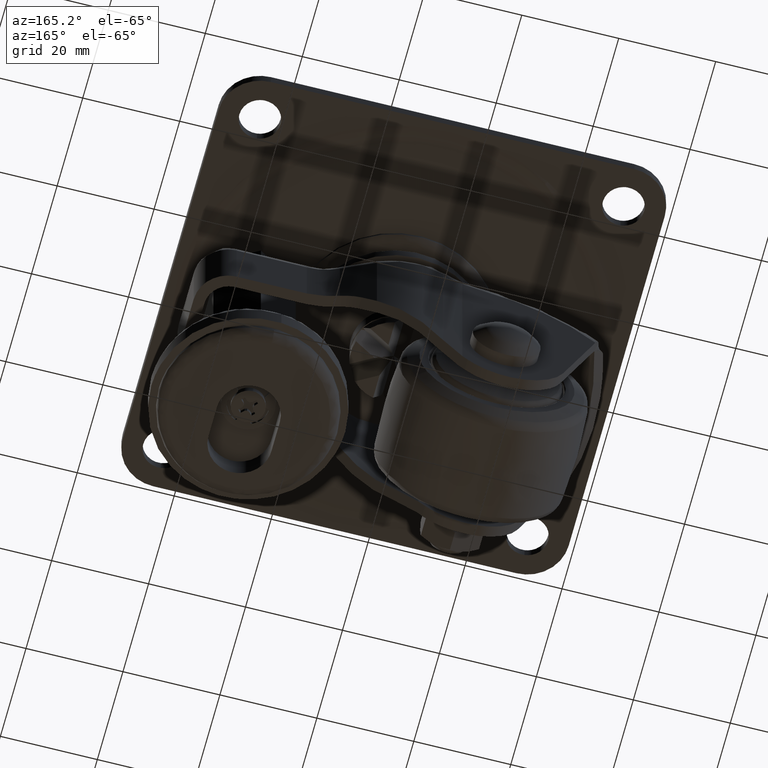
[diagram: clean part render]
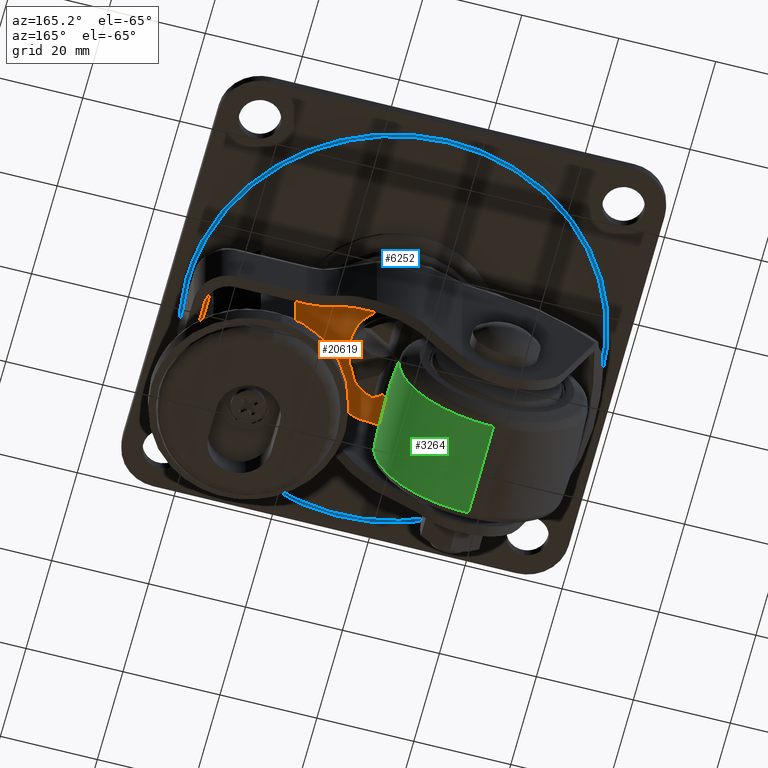
[diagram: same view with three faces highlighted in distinct colors, each labeled with its STEP entity id]
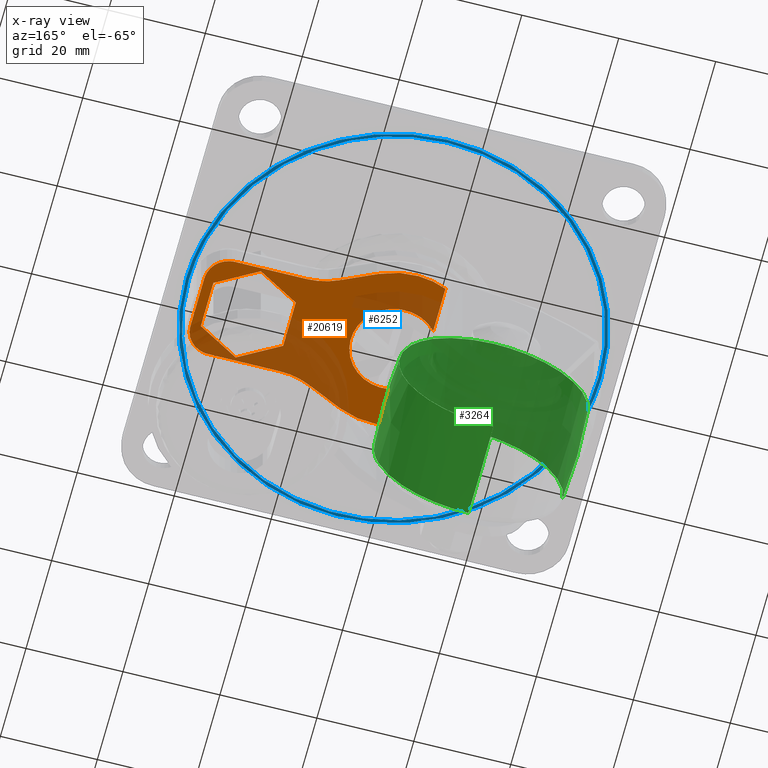
[diagram: x-ray of the same camera — body ghosted, the three highlighted faces saturated]
A machine part, auxiliary view with three faces highlighted in distinct colors.
The next image is the same camera in x-ray (body ghosted, the three faces saturated) — at least one of them is partly hidden behind the body in this view.
Their STEP definitions:

[orange] entity #20619 — the highlighted face is a freeform B-spline surface patch.
#12724=CARTESIAN_POINT('',(2.961794371949499,8.339680695196943,-12.510254204353799));
#12725=VERTEX_POINT('',#12724);
#12731=CARTESIAN_POINT('',(-6.582213136127050,-5.915823715307660,-12.510254204353799));
#12732=VERTEX_POINT('',#12731);
#12733=CARTESIAN_POINT('',(2.961794371949500,8.339680695196943,-12.510254204353805));
#12734=CARTESIAN_POINT('',(3.065269002379969,8.302932216565001,-12.510254204353803));
#12735=CARTESIAN_POINT('',(3.167800005151601,8.263627721973052,-12.510254204353799));
#12736=CARTESIAN_POINT('',(8.850000000000000,6.085398767504200,-12.510254204353799));
#12737=CARTESIAN_POINT('',(8.850000000000000,0.0,-12.510254204353799));
#12738=CARTESIAN_POINT('',(8.850000000000000,-6.085398767504312,-12.510254204353799));
#12739=CARTESIAN_POINT('',(3.167800005151458,-8.263627721973107,-12.510254204353799));
#12740=CARTESIAN_POINT('',(-2.514399989697033,-10.441856676441880,-12.510254204353799));
#12741=CARTESIAN_POINT('',(-6.582213136127051,-5.915823715307657,-12.510254204353799));
#12749=(BOUNDED_CURVE()B_SPLINE_CURVE(2,(#12733,#12734,#12735,#12736,#12737,#12738,#12739,#12740,#12741),.UNSPECIFIED.,.F.,.U.)B_SPLINE_CURVE_WITH_KNOTS((3,2,2,2,3),(0.244546413399805,0.250000000000000,0.500000000000000,0.750000000000000,1.0),.UNSPECIFIED.)CURVE()GEOMETRIC_REPRESENTATION_ITEM()RATIONAL_B_SPLINE_CURVE((0.992488744781486,0.996160618799266,1.0,0.823997422146135,1.0,0.823997422146135,1.0,0.823997422146135,1.0))REPRESENTATION_ITEM(''));
#12750=EDGE_CURVE('',#12725,#12732,#12749,.T.);
#12774=CARTESIAN_POINT('',(-6.582213136126950,5.915823715307770,-12.510254204353799));
#12775=VERTEX_POINT('',#12774);
#12781=CARTESIAN_POINT('',(-5.065942506351465,7.256633277377423,-12.510254204353799));
#12782=VERTEX_POINT('',#12781);
#12783=CARTESIAN_POINT('',(-6.582213136126949,5.915823715307771,-12.510254204353799));
#12784=CARTESIAN_POINT('',(-5.901247561098838,6.673496825411101,-12.510254204353803));
#12785=CARTESIAN_POINT('',(-5.065942506351465,7.256633277377423,-12.510254204353801));
#12793=(BOUNDED_CURVE()B_SPLINE_CURVE(2,(#12783,#12784,#12785),.UNSPECIFIED.,.F.,.U.)B_SPLINE_CURVE_WITH_KNOTS((3,3),(0.0,0.049036624749275),.UNSPECIFIED.)CURVE()GEOMETRIC_REPRESENTATION_ITEM()RATIONAL_B_SPLINE_CURVE((1.0,0.965477710539500,0.944498273509083))REPRESENTATION_ITEM(''));
#12794=EDGE_CURVE('',#12775,#12782,#12793,.T.);
#12838=CARTESIAN_POINT('',(-5.065942506351465,7.256633277377423,-12.510254204353803));
#12839=CARTESIAN_POINT('',(-1.330807225300990,9.864175902705789,-12.510254204353805));
#12840=CARTESIAN_POINT('',(2.961794371949500,8.339680695196943,-12.510254204353796));
#12848=(BOUNDED_CURVE()B_SPLINE_CURVE(2,(#12838,#12839,#12840),.UNSPECIFIED.,.F.,.U.)B_SPLINE_CURVE_WITH_KNOTS((3,3),(0.049036624749275,0.244546413399805),.UNSPECIFIED.)CURVE()GEOMETRIC_REPRESENTATION_ITEM()RATIONAL_B_SPLINE_CURVE((0.944498273509083,0.860852930445691,0.992488744781486))REPRESENTATION_ITEM(''));
#12849=EDGE_CURVE('',#12782,#12725,#12848,.T.);
#16075=CARTESIAN_POINT('',(21.499966632998799,4.907477500000000,-12.510254204353799));
#16076=VERTEX_POINT('',#16075);
#16082=CARTESIAN_POINT('',(29.999966999999899,9.814954999999999,-12.510254204353799));
#16083=VERTEX_POINT('',#16082);
#16084=CARTESIAN_POINT('',(29.999966999999899,9.814954999999999,-12.510254204353799));
#16085=CARTESIAN_POINT('',(21.499966632998799,4.907477500000000,-12.510254204353799));
#16086=QUASI_UNIFORM_CURVE('',1,(#16084,#16085),.UNSPECIFIED.,.F.,.U.);
#16087=EDGE_CURVE('',#16083,#16076,#16086,.T.);
#16104=CARTESIAN_POINT('',(38.499967367001013,4.907477500000010,-12.510254204353799));
#16105=VERTEX_POINT('',#16104);
#16132=CARTESIAN_POINT('',(38.499967367001013,4.907477500000010,-12.510254204353799));
#16133=CARTESIAN_POINT('',(29.999966999999899,9.814954999999999,-12.510254204353799));
#16134=QUASI_UNIFORM_CURVE('',1,(#16132,#16133),.UNSPECIFIED.,.F.,.U.);
#16135=EDGE_CURVE('',#16105,#16083,#16134,.T.);
#16215=CARTESIAN_POINT('',(20.764023569161498,10.500000000000000,-12.510254204353760));
#16216=VERTEX_POINT('',#16215);
#16217=CARTESIAN_POINT('',(14.329884037383501,11.918651056701600,-12.510254204353760));
#16218=VERTEX_POINT('',#16217);
#16219=CARTESIAN_POINT('',(20.764023569161498,10.500000000000000,-12.510254204353799));
#16220=CARTESIAN_POINT('',(17.390555981097478,10.500000000000002,-12.510254204353803));
#16221=CARTESIAN_POINT('',(14.329884037383501,11.918651056701600,-12.510254204353799));
#16229=(BOUNDED_CURVE()B_SPLINE_CURVE(2,(#16219,#16220,#16221),.UNSPECIFIED.,.F.,.U.)CURVE()GEOMETRIC_REPRESENTATION_ITEM()QUASI_UNIFORM_CURVE()RATIONAL_B_SPLINE_CURVE((1.0,0.976544343261563,1.0))REPRESENTATION_ITEM(''));
#16230=EDGE_CURVE('',#16216,#16218,#16229,.T.);
#16291=CARTESIAN_POINT('',(40.499966999999963,5.500000000000000,-12.510254204353760));
#16292=VERTEX_POINT('',#16291);
#16293=CARTESIAN_POINT('',(35.499966999999948,10.500000000000000,-12.510254204353760));
#16294=VERTEX_POINT('',#16293);
#16295=CARTESIAN_POINT('',(40.499966999999948,5.500000000000000,-12.510254204353799));
#16296=CARTESIAN_POINT('',(40.499966999999948,10.499999999999998,-12.510254204353798));
#16297=CARTESIAN_POINT('',(35.499966999999948,10.500000000000000,-12.510254204353799));
#16305=(BOUNDED_CURVE()B_SPLINE_CURVE(2,(#16295,#16296,#16297),.UNSPECIFIED.,.F.,.U.)CURVE()GEOMETRIC_REPRESENTATION_ITEM()QUASI_UNIFORM_CURVE()RATIONAL_B_SPLINE_CURVE((1.0,0.707106781186548,1.0))REPRESENTATION_ITEM(''));
#16306=EDGE_CURVE('',#16292,#16294,#16305,.T.);
#16415=CARTESIAN_POINT('',(7.081631999999810,15.278285999999801,-12.510254204353799));
#16416=VERTEX_POINT('',#16415);
#16417=CARTESIAN_POINT('',(14.329884037383501,11.918651056701600,-12.510254204353760));
#16418=CARTESIAN_POINT('',(7.081631999999810,15.278285999999801,-12.510254204353799));
#16419=QUASI_UNIFORM_CURVE('',1,(#16417,#16418),.UNSPECIFIED.,.F.,.U.);
#16420=EDGE_CURVE('',#16218,#16416,#16419,.T.);
#16481=CARTESIAN_POINT('',(-6.582213136127130,15.500000000000000,-12.510254204353799));
#16482=VERTEX_POINT('',#16481);
#16483=CARTESIAN_POINT('',(7.081631999999810,15.278285999999801,-12.510254204353799));
#16484=CARTESIAN_POINT('',(0.298923765655124,18.422136110090232,-12.510254204353803));
#16485=CARTESIAN_POINT('',(-6.582213136127130,15.500000000000000,-12.510254204353799));
#16493=(BOUNDED_CURVE()B_SPLINE_CURVE(2,(#16483,#16484,#16485),.UNSPECIFIED.,.F.,.U.)CURVE()GEOMETRIC_REPRESENTATION_ITEM()QUASI_UNIFORM_CURVE()RATIONAL_B_SPLINE_CURVE((1.0,0.913981117128645,1.0))REPRESENTATION_ITEM(''));
#16494=EDGE_CURVE('',#16416,#16482,#16493,.T.);
#16531=CARTESIAN_POINT('',(35.499966999999948,10.500000000000000,-12.510254204353760));
#16532=CARTESIAN_POINT('',(20.764023569161498,10.500000000000000,-12.510254204353760));
#16533=QUASI_UNIFORM_CURVE('',1,(#16531,#16532),.UNSPECIFIED.,.F.,.U.);
#16534=EDGE_CURVE('',#16294,#16216,#16533,.T.);
#18941=CARTESIAN_POINT('',(29.999966999999899,-9.814954999999999,-12.510254204353799));
#18942=VERTEX_POINT('',#18941);
#18948=CARTESIAN_POINT('',(21.499966632998799,-4.907477500000000,-12.510254204353799));
#18949=VERTEX_POINT('',#18948);
#18950=CARTESIAN_POINT('',(29.999966999999899,-9.814954999999999,-12.510254204353799));
#18951=CARTESIAN_POINT('',(21.499966632998799,-4.907477500000000,-12.510254204353799));
#18952=QUASI_UNIFORM_CURVE('',1,(#18950,#18951),.UNSPECIFIED.,.F.,.U.);
#18953=EDGE_CURVE('',#18942,#18949,#18952,.T.);
#18977=CARTESIAN_POINT('',(38.499967367001013,-4.907477500000000,-12.510254204353799));
#18978=VERTEX_POINT('',#18977);
#18984=CARTESIAN_POINT('',(38.499967367001013,-4.907477500000000,-12.510254204353799));
#18985=CARTESIAN_POINT('',(29.999966999999899,-9.814954999999999,-12.510254204353799));
#18986=QUASI_UNIFORM_CURVE('',1,(#18984,#18985),.UNSPECIFIED.,.F.,.U.);
#18987=EDGE_CURVE('',#18978,#18942,#18986,.T.);
#19088=CARTESIAN_POINT('',(20.764023569161498,-10.500000000000000,-12.510254204353760));
#19089=VERTEX_POINT('',#19088);
#19090=CARTESIAN_POINT('',(14.329884037383501,-11.918651056701600,-12.510254204353760));
#19091=VERTEX_POINT('',#19090);
#19092=CARTESIAN_POINT('',(20.764023569161498,-10.500000000000000,-12.510254204353799));
#19093=CARTESIAN_POINT('',(17.390555981097478,-10.500000000000002,-12.510254204353803));
#19094=CARTESIAN_POINT('',(14.329884037383501,-11.918651056701600,-12.510254204353799));
#19102=(BOUNDED_CURVE()B_SPLINE_CURVE(2,(#19092,#19093,#19094),.UNSPECIFIED.,.F.,.U.)CURVE()GEOMETRIC_REPRESENTATION_ITEM()QUASI_UNIFORM_CURVE()RATIONAL_B_SPLINE_CURVE((1.0,0.976544343261563,1.0))REPRESENTATION_ITEM(''));
#19103=EDGE_CURVE('',#19089,#19091,#19102,.T.);
#19164=CARTESIAN_POINT('',(40.499966999999963,-5.500000000000000,-12.510254204353760));
#19165=VERTEX_POINT('',#19164);
#19166=CARTESIAN_POINT('',(35.499966999999948,-10.500000000000000,-12.510254204353760));
#19167=VERTEX_POINT('',#19166);
#19168=CARTESIAN_POINT('',(40.499966999999948,-5.500000000000000,-12.510254204353799));
#19169=CARTESIAN_POINT('',(40.499966999999948,-10.499999999999998,-12.510254204353798));
#19170=CARTESIAN_POINT('',(35.499966999999948,-10.500000000000000,-12.510254204353799));
#19178=(BOUNDED_CURVE()B_SPLINE_CURVE(2,(#19168,#19169,#19170),.UNSPECIFIED.,.F.,.U.)CURVE()GEOMETRIC_REPRESENTATION_ITEM()QUASI_UNIFORM_CURVE()RATIONAL_B_SPLINE_CURVE((1.0,0.707106781186548,1.0))REPRESENTATION_ITEM(''));
#19179=EDGE_CURVE('',#19165,#19167,#19178,.T.);
#19288=CARTESIAN_POINT('',(7.081631999999810,-15.278285999999801,-12.510254204353799));
#19289=VERTEX_POINT('',#19288);
#19290=CARTESIAN_POINT('',(14.329884037383501,-11.918651056701600,-12.510254204353760));
#19291=CARTESIAN_POINT('',(7.081631999999810,-15.278285999999801,-12.510254204353799));
#19292=QUASI_UNIFORM_CURVE('',1,(#19290,#19291),.UNSPECIFIED.,.F.,.U.);
#19293=EDGE_CURVE('',#19091,#19289,#19292,.T.);
#19369=CARTESIAN_POINT('',(-6.582213136127130,-15.500000000000000,-12.510254204353799));
#19370=VERTEX_POINT('',#19369);
#19376=CARTESIAN_POINT('',(7.081631999999810,-15.278285999999801,-12.510254204353799));
#19377=CARTESIAN_POINT('',(0.298923765655124,-18.422136110090232,-12.510254204353803));
#19378=CARTESIAN_POINT('',(-6.582213136127130,-15.500000000000000,-12.510254204353799));
#19386=(BOUNDED_CURVE()B_SPLINE_CURVE(2,(#19376,#19377,#19378),.UNSPECIFIED.,.F.,.U.)CURVE()GEOMETRIC_REPRESENTATION_ITEM()QUASI_UNIFORM_CURVE()RATIONAL_B_SPLINE_CURVE((1.0,0.913981117128645,1.0))REPRESENTATION_ITEM(''));
#19387=EDGE_CURVE('',#19289,#19370,#19386,.T.);
#19404=CARTESIAN_POINT('',(35.499966999999948,-10.500000000000000,-12.510254204353760));
#19405=CARTESIAN_POINT('',(20.764023569161498,-10.500000000000000,-12.510254204353760));
#19406=QUASI_UNIFORM_CURVE('',1,(#19404,#19405),.UNSPECIFIED.,.F.,.U.);
#19407=EDGE_CURVE('',#19167,#19089,#19406,.T.);
#20492=CARTESIAN_POINT('',(38.499967367001013,4.907477500000010,-12.510254204353799));
#20493=CARTESIAN_POINT('',(38.499967367001013,-4.907477500000000,-12.510254204353799));
#20494=QUASI_UNIFORM_CURVE('',1,(#20492,#20493),.UNSPECIFIED.,.F.,.U.);
#20495=EDGE_CURVE('',#16105,#18978,#20494,.T.);
#20506=CARTESIAN_POINT('',(21.499966632998799,-4.907477500000000,-12.510254204353799));
#20507=CARTESIAN_POINT('',(21.499966632998799,4.907477500000000,-12.510254204353799));
#20508=QUASI_UNIFORM_CURVE('',1,(#20506,#20507),.UNSPECIFIED.,.F.,.U.);
#20509=EDGE_CURVE('',#18949,#16076,#20508,.T.);
#20576=CARTESIAN_POINT('',(-8.933967774461664,-18.520734395939790,-12.510254204353760));
#20577=CARTESIAN_POINT('',(42.851719533597020,-18.520734395939790,-12.510254204353760));
#20578=CARTESIAN_POINT('',(-8.933967774461664,18.520734395939801,-12.510254204353760));
#20579=CARTESIAN_POINT('',(42.851719533597020,18.520734395939801,-12.510254204353760));
#20580=B_SPLINE_SURFACE_WITH_KNOTS('',1,1,((#20576,#20578),(#20577,#20579)),.UNSPECIFIED.,.F.,.F.,.U.,(2,2),(2,2),(0.0,51.785687308058677),(0.0,37.041468791879602),.UNSPECIFIED.);
#20581=ORIENTED_EDGE('',*,*,#12794,.F.);
#20582=CARTESIAN_POINT('',(-6.582213136126950,5.915823715307770,-12.510254204353799));
#20583=CARTESIAN_POINT('',(-6.582213136127130,15.500000000000000,-12.510254204353799));
#20584=QUASI_UNIFORM_CURVE('',1,(#20582,#20583),.UNSPECIFIED.,.F.,.U.);
#20585=EDGE_CURVE('',#12775,#16482,#20584,.T.);
#20586=ORIENTED_EDGE('',*,*,#20585,.T.);
#20587=ORIENTED_EDGE('',*,*,#16494,.F.);
#20588=ORIENTED_EDGE('',*,*,#16420,.F.);
#20589=ORIENTED_EDGE('',*,*,#16230,.F.);
#20590=ORIENTED_EDGE('',*,*,#16534,.F.);
#20591=ORIENTED_EDGE('',*,*,#16306,.F.);
#20592=CARTESIAN_POINT('',(40.499966999999963,5.500000000000000,-12.510254204353760));
#20593=CARTESIAN_POINT('',(40.499966999999963,-5.500000000000000,-12.510254204353760));
#20594=QUASI_UNIFORM_CURVE('',1,(#20592,#20593),.UNSPECIFIED.,.F.,.U.);
#20595=EDGE_CURVE('',#16292,#19165,#20594,.T.);
#20596=ORIENTED_EDGE('',*,*,#20595,.T.);
#20597=ORIENTED_EDGE('',*,*,#19179,.T.);
#20598=ORIENTED_EDGE('',*,*,#19407,.T.);
#20599=ORIENTED_EDGE('',*,*,#19103,.T.);
#20600=ORIENTED_EDGE('',*,*,#19293,.T.);
#20601=ORIENTED_EDGE('',*,*,#19387,.T.);
#20602=CARTESIAN_POINT('',(-6.582213136127130,-15.500000000000000,-12.510254204353799));
#20603=CARTESIAN_POINT('',(-6.582213136127050,-5.915823715307660,-12.510254204353799));
#20604=QUASI_UNIFORM_CURVE('',1,(#20602,#20603),.UNSPECIFIED.,.F.,.U.);
#20605=EDGE_CURVE('',#19370,#12732,#20604,.T.);
#20606=ORIENTED_EDGE('',*,*,#20605,.T.);
#20607=ORIENTED_EDGE('',*,*,#12750,.F.);
#20608=ORIENTED_EDGE('',*,*,#12849,.F.);
#20609=EDGE_LOOP('',(#20581,#20586,#20587,#20588,#20589,#20590,#20591,#20596,#20597,#20598,#20599,#20600,#20601,#20606,#20607,#20608));
#20610=FACE_OUTER_BOUND('',#20609,.T.);
#20611=ORIENTED_EDGE('',*,*,#20495,.F.);
#20612=ORIENTED_EDGE('',*,*,#16135,.T.);
#20613=ORIENTED_EDGE('',*,*,#16087,.T.);
#20614=ORIENTED_EDGE('',*,*,#20509,.F.);
#20615=ORIENTED_EDGE('',*,*,#18953,.F.);
#20616=ORIENTED_EDGE('',*,*,#18987,.F.);
#20617=EDGE_LOOP('',(#20611,#20612,#20613,#20614,#20615,#20616));
#20618=FACE_BOUND('',#20617,.T.);
#20619=ADVANCED_FACE('',(#20610,#20618),#20580,.F.);

[blue] entity #6252 — the highlighted face is a freeform B-spline surface patch.
#5825=CARTESIAN_POINT('',(37.757146206083021,-18.940351374251581,-2.685628000000000));
#5826=VERTEX_POINT('',#5825);
#5840=CARTESIAN_POINT('',(-42.241436999999998,0.0,-2.685628000000000));
#5841=VERTEX_POINT('',#5840);
#5842=CARTESIAN_POINT('',(37.757146206083021,-18.940351374251591,-2.685627999999999));
#5843=CARTESIAN_POINT('',(26.068478139480344,-42.241436999999998,-2.685628000000000));
#5844=CARTESIAN_POINT('',(0.0,-42.241436999999998,-2.685628000000000));
#5845=CARTESIAN_POINT('',(-42.241436999999998,-42.241436999999998,-2.685628000000000));
#5846=CARTESIAN_POINT('',(-42.241436999999998,0.0,-2.685628000000000));
#5854=(BOUNDED_CURVE()B_SPLINE_CURVE(2,(#5842,#5843,#5844,#5845,#5846),.UNSPECIFIED.,.F.,.U.)B_SPLINE_CURVE_WITH_KNOTS((3,2,3),(0.576230937884423,0.750000000000000,1.0),.UNSPECIFIED.)CURVE()GEOMETRIC_REPRESENTATION_ITEM()RATIONAL_B_SPLINE_CURVE((0.875845342762591,0.796416880267096,1.0,0.707106781186547,1.0))REPRESENTATION_ITEM(''));
#5855=EDGE_CURVE('',#5826,#5841,#5854,.T.);
#5857=CARTESIAN_POINT('',(18.940351374187710,37.757146205922233,-2.685628000000000));
#5858=VERTEX_POINT('',#5857);
#5859=CARTESIAN_POINT('',(-42.241436999999998,0.0,-2.685628000000000));
#5860=CARTESIAN_POINT('',(-42.241436999999998,42.241436999999998,-2.685628000000000));
#5861=CARTESIAN_POINT('',(0.0,42.241436999999998,-2.685628000000000));
#5862=CARTESIAN_POINT('',(10.001022859073496,42.241436999999998,-2.685628000000000));
#5863=CARTESIAN_POINT('',(18.940351374187710,37.757146205922218,-2.685627999999999));
#5871=(BOUNDED_CURVE()B_SPLINE_CURVE(2,(#5859,#5860,#5861,#5862,#5863),.UNSPECIFIED.,.F.,.U.)B_SPLINE_CURVE_WITH_KNOTS((3,2,3),(0.0,0.250000000000000,0.326230937884533),.UNSPECIFIED.)CURVE()GEOMETRIC_REPRESENTATION_ITEM()RATIONAL_B_SPLINE_CURVE((1.0,0.707106781186547,1.0,0.910689900919323,0.875845342762490))REPRESENTATION_ITEM(''));
#5872=EDGE_CURVE('',#5841,#5858,#5871,.T.);
#5953=CARTESIAN_POINT('',(42.241436999999998,0.0,-2.685628000000000));
#5954=VERTEX_POINT('',#5953);
#5955=CARTESIAN_POINT('',(18.940351374187710,37.757146205922218,-2.685627999999999));
#5956=CARTESIAN_POINT('',(42.241436999999991,26.068478139459629,-2.685628000000000));
#5957=CARTESIAN_POINT('',(42.241436999999998,0.0,-2.685628000000000));
#5965=(BOUNDED_CURVE()B_SPLINE_CURVE(2,(#5955,#5956,#5957),.UNSPECIFIED.,.F.,.U.)B_SPLINE_CURVE_WITH_KNOTS((3,3),(0.326230937884534,0.500000000000000),.UNSPECIFIED.)CURVE()GEOMETRIC_REPRESENTATION_ITEM()RATIONAL_B_SPLINE_CURVE((0.875845342762490,0.796416880267225,1.0))REPRESENTATION_ITEM(''));
#5966=EDGE_CURVE('',#5858,#5954,#5965,.T.);
#5968=CARTESIAN_POINT('',(42.241436999999998,0.0,-2.685628000000000));
#5969=CARTESIAN_POINT('',(42.241437000000005,-10.001022859057574,-2.685628000000001));
#5970=CARTESIAN_POINT('',(37.757146206083021,-18.940351374251588,-2.685627999999999));
#5978=(BOUNDED_CURVE()B_SPLINE_CURVE(2,(#5968,#5969,#5970),.UNSPECIFIED.,.F.,.U.)B_SPLINE_CURVE_WITH_KNOTS((3,3),(0.500000000000000,0.576230937884423),.UNSPECIFIED.)CURVE()GEOMETRIC_REPRESENTATION_ITEM()RATIONAL_B_SPLINE_CURVE((1.0,0.910689900919452,0.875845342762591))REPRESENTATION_ITEM(''));
#5979=EDGE_CURVE('',#5954,#5826,#5978,.T.);
#6020=CARTESIAN_POINT('',(36.314905863463103,22.761459414357159,-2.685628000000000));
#6021=VERTEX_POINT('',#6020);
#6022=CARTESIAN_POINT('',(42.858562999999997,0.0,-2.685628000000000));
#6023=VERTEX_POINT('',#6022);
#6024=CARTESIAN_POINT('',(36.314905863463096,22.761459414357159,-2.685628000000000));
#6025=CARTESIAN_POINT('',(42.858563000000011,12.321342695619100,-2.685628000000000));
#6026=CARTESIAN_POINT('',(42.858562999999997,0.0,-2.685628000000000));
#6034=(BOUNDED_CURVE()B_SPLINE_CURVE(2,(#6024,#6025,#6026),.UNSPECIFIED.,.F.,.U.)B_SPLINE_CURVE_WITH_KNOTS((3,3),(0.409173271053396,0.500000000000000),.UNSPECIFIED.)CURVE()GEOMETRIC_REPRESENTATION_ITEM()RATIONAL_B_SPLINE_CURVE((0.864498809753776,0.893589868018129,1.0))REPRESENTATION_ITEM(''));
#6035=EDGE_CURVE('',#6021,#6023,#6034,.T.);
#6099=CARTESIAN_POINT('',(-20.647270193131821,37.557245055844021,-2.685628000000000));
#6100=VERTEX_POINT('',#6099);
#6114=CARTESIAN_POINT('',(-42.858562999999997,0.0,-2.685628000000000));
#6115=VERTEX_POINT('',#6114);
#6116=CARTESIAN_POINT('',(-42.858562999999997,0.0,-2.685628000000000));
#6117=CARTESIAN_POINT('',(-42.858563000000004,25.346483501387556,-2.685628000000000));
#6118=CARTESIAN_POINT('',(-20.647270193131824,37.557245055844021,-2.685628000000000));
#6126=(BOUNDED_CURVE()B_SPLINE_CURVE(2,(#6116,#6117,#6118),.UNSPECIFIED.,.F.,.U.)B_SPLINE_CURVE_WITH_KNOTS((3,3),(0.0,0.167949183895830),.UNSPECIFIED.)CURVE()GEOMETRIC_REPRESENTATION_ITEM()RATIONAL_B_SPLINE_CURVE((1.0,0.803235291726632,0.870842360845370))REPRESENTATION_ITEM(''));
#6127=EDGE_CURVE('',#6115,#6100,#6126,.T.);
#6129=CARTESIAN_POINT('',(42.858562999999997,0.0,-2.685628000000000));
#6130=CARTESIAN_POINT('',(42.858563000000011,-42.858563000000011,-2.685628000000000));
#6131=CARTESIAN_POINT('',(0.0,-42.858562999999997,-2.685628000000000));
#6132=CARTESIAN_POINT('',(-42.858563000000011,-42.858563000000011,-2.685628000000000));
#6133=CARTESIAN_POINT('',(-42.858562999999997,0.0,-2.685628000000000));
#6141=(BOUNDED_CURVE()B_SPLINE_CURVE(2,(#6129,#6130,#6131,#6132,#6133),.UNSPECIFIED.,.F.,.U.)B_SPLINE_CURVE_WITH_KNOTS((3,2,3),(0.500000000000000,0.750000000000000,1.0),.UNSPECIFIED.)CURVE()GEOMETRIC_REPRESENTATION_ITEM()RATIONAL_B_SPLINE_CURVE((1.0,0.707106781186548,1.0,0.707106781186548,1.0))REPRESENTATION_ITEM(''));
#6142=EDGE_CURVE('',#6023,#6115,#6141,.T.);
#6164=CARTESIAN_POINT('',(-20.647270193131817,37.557245055844028,-2.685627999999999));
#6165=CARTESIAN_POINT('',(-11.004208646599512,42.858563000000011,-2.685628000000000));
#6166=CARTESIAN_POINT('',(0.0,42.858562999999997,-2.685628000000000));
#6167=CARTESIAN_POINT('',(23.718441772619745,42.858563000000011,-2.685628000000000));
#6168=CARTESIAN_POINT('',(36.314905863463096,22.761459414357166,-2.685627999999999));
#6176=(BOUNDED_CURVE()B_SPLINE_CURVE(2,(#6164,#6165,#6166,#6167,#6168),.UNSPECIFIED.,.F.,.U.)B_SPLINE_CURVE_WITH_KNOTS((3,2,3),(0.167949183895830,0.250000000000000,0.409173271053397),.UNSPECIFIED.)CURVE()GEOMETRIC_REPRESENTATION_ITEM()RATIONAL_B_SPLINE_CURVE((0.870842360845369,0.903871489459916,1.0,0.813516913168418,0.864498809753776))REPRESENTATION_ITEM(''));
#6177=EDGE_CURVE('',#6100,#6021,#6176,.T.);
#6235=CARTESIAN_POINT('',(47.140133277563578,-47.140129498682768,-2.685628000000000));
#6236=CARTESIAN_POINT('',(-47.140135576676059,-47.140129498682768,-2.685628000000000));
#6237=CARTESIAN_POINT('',(47.140133277563578,47.140056143493773,-2.685628000000000));
#6238=CARTESIAN_POINT('',(-47.140135576676059,47.140056143493773,-2.685628000000000));
#6239=B_SPLINE_SURFACE_WITH_KNOTS('',1,1,((#6235,#6237),(#6236,#6238)),.UNSPECIFIED.,.F.,.F.,.U.,(2,2),(2,2),(0.0,94.280268854239637),(0.0,94.280185642176534),.UNSPECIFIED.);
#6240=ORIENTED_EDGE('',*,*,#6035,.T.);
#6241=ORIENTED_EDGE('',*,*,#6142,.T.);
#6242=ORIENTED_EDGE('',*,*,#6127,.T.);
#6243=ORIENTED_EDGE('',*,*,#6177,.T.);
#6244=EDGE_LOOP('',(#6240,#6241,#6242,#6243));
#6245=FACE_OUTER_BOUND('',#6244,.T.);
#6246=ORIENTED_EDGE('',*,*,#5872,.F.);
#6247=ORIENTED_EDGE('',*,*,#5855,.F.);
#6248=ORIENTED_EDGE('',*,*,#5979,.F.);
#6249=ORIENTED_EDGE('',*,*,#5966,.F.);
#6250=EDGE_LOOP('',(#6246,#6247,#6248,#6249));
#6251=FACE_BOUND('',#6250,.T.);
#6252=ADVANCED_FACE('',(#6245,#6251),#6239,.T.);

[green] entity #3264 — the highlighted face is a freeform B-spline surface patch.
#2520=CARTESIAN_POINT('',(-1.013542632934380,9.835953801905641,-30.392745770834139));
#2521=VERTEX_POINT('',#2520);
#2535=CARTESIAN_POINT('',(-17.999999000000098,9.835954750004738,-59.515088303104932));
#2536=VERTEX_POINT('',#2535);
#2537=CARTESIAN_POINT('',(-1.013542632934380,9.835953801905641,-30.392745770834139));
#2538=CARTESIAN_POINT('',(1.515095431105951,9.835953932050048,-34.863599724702880));
#2539=CARTESIAN_POINT('',(1.515095431105951,9.835954102479420,-39.999993935999477));
#2540=CARTESIAN_POINT('',(1.515095431105950,9.835954750004738,-59.515088303104939));
#2541=CARTESIAN_POINT('',(-17.999999000000098,9.835954750004738,-59.515088303104932));
#2549=(BOUNDED_CURVE()B_SPLINE_CURVE(2,(#2537,#2538,#2539,#2540,#2541),.UNSPECIFIED.,.F.,.U.)B_SPLINE_CURVE_WITH_KNOTS((3,2,3),(0.166092120203505,0.250000000000000,0.500000000000000),.UNSPECIFIED.)CURVE()GEOMETRIC_REPRESENTATION_ITEM()RATIONAL_B_SPLINE_CURVE((0.869379581305451,0.901695804010369,1.0,0.707106781186548,1.0))REPRESENTATION_ITEM(''));
#2550=EDGE_CURVE('',#2521,#2536,#2549,.T.);
#2611=CARTESIAN_POINT('',(-37.384569424891630,9.835953450083725,-42.253289390355718));
#2612=VERTEX_POINT('',#2611);
#2626=CARTESIAN_POINT('',(-17.999999000000098,9.835953454954101,-20.484899568894040));
#2627=VERTEX_POINT('',#2626);
#2628=CARTESIAN_POINT('',(-37.384569424891637,9.835953450083725,-42.253289390355711));
#2629=CARTESIAN_POINT('',(-37.515093431106152,9.835953454954103,-41.130422076933996));
#2630=CARTESIAN_POINT('',(-37.515093431106152,9.835953454954101,-39.999994000000093));
#2631=CARTESIAN_POINT('',(-37.515093431106159,9.835953454954101,-20.484899568894040));
#2632=CARTESIAN_POINT('',(-17.999999000000098,9.835953454954101,-20.484899568894040));
#2640=(BOUNDED_CURVE()B_SPLINE_CURVE(2,(#2628,#2629,#2630,#2631,#2632),.UNSPECIFIED.,.F.,.U.)B_SPLINE_CURVE_WITH_KNOTS((3,2,3),(0.729999999100019,0.750000000000000,1.0),.UNSPECIFIED.)CURVE()GEOMETRIC_REPRESENTATION_ITEM()RATIONAL_B_SPLINE_CURVE((0.956886116419278,0.976568541440530,1.0,0.707106781186548,1.0))REPRESENTATION_ITEM(''));
#2641=EDGE_CURVE('',#2612,#2627,#2640,.T.);
#2643=CARTESIAN_POINT('',(-17.999999000000098,9.835953454954101,-20.484899568894040));
#2644=CARTESIAN_POINT('',(-6.617250633923225,9.835953454954101,-20.484899568894043));
#2645=CARTESIAN_POINT('',(-1.013542632934380,9.835953801905641,-30.392745770834139));
#2653=(BOUNDED_CURVE()B_SPLINE_CURVE(2,(#2643,#2644,#2645),.UNSPECIFIED.,.F.,.U.)B_SPLINE_CURVE_WITH_KNOTS((3,3),(0.0,0.166092120203505),.UNSPECIFIED.)CURVE()GEOMETRIC_REPRESENTATION_ITEM()RATIONAL_B_SPLINE_CURVE((1.0,0.805410977176179,0.869379581305451))REPRESENTATION_ITEM(''));
#2654=EDGE_CURVE('',#2627,#2521,#2653,.T.);
#2677=CARTESIAN_POINT('',(-10.917887246938660,-9.835953127419440,-21.815313038026840));
#2678=VERTEX_POINT('',#2677);
#2679=CARTESIAN_POINT('',(0.559959080454197,-9.835954198488775,-46.030489941608010));
#2680=VERTEX_POINT('',#2679);
#2681=CARTESIAN_POINT('',(-10.917887246938664,-9.835953127419440,-21.815313038026844));
#2682=CARTESIAN_POINT('',(1.515095888621952,-9.835953342618824,-26.657398277608202));
#2683=CARTESIAN_POINT('',(1.515095888621951,-9.835953933864442,-39.999993862105377));
#2684=CARTESIAN_POINT('',(1.515095888621951,-9.835954070829819,-43.090881310079780));
#2685=CARTESIAN_POINT('',(0.559959080454197,-9.835954198488775,-46.030489941608010));
#2693=(BOUNDED_CURVE()B_SPLINE_CURVE(2,(#2681,#2682,#2683,#2684,#2685),.UNSPECIFIED.,.F.,.U.)B_SPLINE_CURVE_WITH_KNOTS((3,2,3),(0.061622011916098,0.250000000000000,0.302549826877912),.UNSPECIFIED.)CURVE()GEOMETRIC_REPRESENTATION_ITEM()RATIONAL_B_SPLINE_CURVE((0.891200894947009,0.779301458866015,1.0,0.938434048230555,0.902750337317576))REPRESENTATION_ITEM(''));
#2694=EDGE_CURVE('',#2678,#2680,#2693,.T.);
#2761=CARTESIAN_POINT('',(-17.999999000000098,-9.835953069099100,-20.484899111378041));
#2762=VERTEX_POINT('',#2761);
#2763=CARTESIAN_POINT('',(-17.999999000000098,-9.835953069099100,-20.484899111378041));
#2764=CARTESIAN_POINT('',(-14.333980308485788,-9.835953069099100,-20.484899111378041));
#2765=CARTESIAN_POINT('',(-10.917887246938664,-9.835953127419440,-21.815313038026844));
#2773=(BOUNDED_CURVE()B_SPLINE_CURVE(2,(#2763,#2764,#2765),.UNSPECIFIED.,.F.,.U.)B_SPLINE_CURVE_WITH_KNOTS((3,3),(0.0,0.061622011916098),.UNSPECIFIED.)CURVE()GEOMETRIC_REPRESENTATION_ITEM()RATIONAL_B_SPLINE_CURVE((1.0,0.927805322320532,0.891200894947009))REPRESENTATION_ITEM(''));
#2774=EDGE_CURVE('',#2762,#2678,#2773,.T.);
#2776=CARTESIAN_POINT('',(-37.384569673078403,-9.835953043703775,-42.253289419183417));
#2777=VERTEX_POINT('',#2776);
#2778=CARTESIAN_POINT('',(-37.384569673078403,-9.835953043703775,-42.253289419183417));
#2779=CARTESIAN_POINT('',(-37.515093888622154,-9.835953069099100,-41.130422103414112));
#2780=CARTESIAN_POINT('',(-37.515093888622147,-9.835953069099100,-39.999994000000093));
#2781=CARTESIAN_POINT('',(-37.515093888622147,-9.835953069099100,-20.484899111378049));
#2782=CARTESIAN_POINT('',(-17.999999000000098,-9.835953069099100,-20.484899111378041));
#2790=(BOUNDED_CURVE()B_SPLINE_CURVE(2,(#2778,#2779,#2780,#2781,#2782),.UNSPECIFIED.,.F.,.U.)B_SPLINE_CURVE_WITH_KNOTS((3,2,3),(0.729999999100397,0.750000000000000,1.0),.UNSPECIFIED.)CURVE()GEOMETRIC_REPRESENTATION_ITEM()RATIONAL_B_SPLINE_CURVE((0.956886116420022,0.976568541440973,1.0,0.707106781186548,1.0))REPRESENTATION_ITEM(''));
#2791=EDGE_CURVE('',#2777,#2762,#2790,.T.);
#2793=CARTESIAN_POINT('',(-17.999999000000098,-9.835954798629786,-59.515088612832727));
#2794=VERTEX_POINT('',#2793);
#2808=CARTESIAN_POINT('',(0.559959080454197,-9.835954198488775,-46.030489941608010));
#2809=CARTESIAN_POINT('',(-3.821452756518120,-9.835954798629786,-59.515088612832720));
#2810=CARTESIAN_POINT('',(-17.999999000000098,-9.835954798629786,-59.515088612832727));
#2818=(BOUNDED_CURVE()B_SPLINE_CURVE(2,(#2808,#2809,#2810),.UNSPECIFIED.,.F.,.U.)B_SPLINE_CURVE_WITH_KNOTS((3,3),(0.302549826877911,0.500000000000000),.UNSPECIFIED.)CURVE()GEOMETRIC_REPRESENTATION_ITEM()RATIONAL_B_SPLINE_CURVE((0.902750337317576,0.768672732955992,1.0))REPRESENTATION_ITEM(''));
#2819=EDGE_CURVE('',#2680,#2794,#2818,.T.);
#3194=CARTESIAN_POINT('',(-37.283822440229166,10.813066762592346,-42.241577855674670));
#3195=CARTESIAN_POINT('',(-38.452076427501829,-0.000001992680530,-42.377377651047972));
#3196=CARTESIAN_POINT('',(-37.283822014681448,-10.813070701355587,-42.241577806208284));
#3197=CARTESIAN_POINT('',(-37.413668015823696,10.813066762592339,-41.124546633344508));
#3198=CARTESIAN_POINT('',(-38.589788317154252,-0.000001992680535,-41.192674362364365));
#3199=CARTESIAN_POINT('',(-37.413667587410600,-10.813070701355592,-41.124546608528334));
#3200=CARTESIAN_POINT('',(-37.413668015823681,10.813066762592342,-39.999994000000093));
#3201=CARTESIAN_POINT('',(-38.589788317154238,-0.000001992680531,-39.999994000000079));
#3202=CARTESIAN_POINT('',(-37.413667587410593,-10.813070701355587,-39.999994000000093));
#3203=CARTESIAN_POINT('',(-37.413668015823696,10.813066762592342,-20.586324984176507));
#3204=CARTESIAN_POINT('',(-38.589788317154252,-0.000001992680535,-19.410204682845944));
#3205=CARTESIAN_POINT('',(-37.413667587410600,-10.813070701355590,-20.586325412589595));
#3206=CARTESIAN_POINT('',(-17.999999000000102,10.813066762592342,-20.586324984176510));
#3207=CARTESIAN_POINT('',(-17.999999000000102,-0.000001992680531,-19.410204682845944));
#3208=CARTESIAN_POINT('',(-17.999999000000102,-10.813070701355587,-20.586325412589602));
#3209=CARTESIAN_POINT('',(1.413670015823490,10.813066762592342,-20.586324984176493));
#3210=CARTESIAN_POINT('',(2.589790317154052,-0.000001992680535,-19.410204682845929));
#3211=CARTESIAN_POINT('',(1.413669587410399,-10.813070701355590,-20.586325412589595));
#3212=CARTESIAN_POINT('',(1.413670015823487,10.813066762592342,-39.999994000000093));
#3213=CARTESIAN_POINT('',(2.589790317154048,-0.000001992680531,-39.999994000000079));
#3214=CARTESIAN_POINT('',(1.413669587410395,-10.813070701355587,-39.999994000000093));
#3215=CARTESIAN_POINT('',(1.413670015823501,10.813066762592342,-59.413663015823680));
#3216=CARTESIAN_POINT('',(2.589790317154060,-0.000001992680535,-60.589783317154250));
#3217=CARTESIAN_POINT('',(1.413669587410404,-10.813070701355590,-59.413662587410577));
#3218=CARTESIAN_POINT('',(-17.999999000000102,10.813066762592342,-59.413663015823680));
#3219=CARTESIAN_POINT('',(-17.999999000000102,-0.000001992680531,-60.589783317154243));
#3220=CARTESIAN_POINT('',(-17.999999000000102,-10.813070701355587,-59.413662587410606));
#3228=(BOUNDED_SURFACE()B_SPLINE_SURFACE(2,2,((#3194,#3197,#3200,#3203,#3206,#3209,#3212,#3215,#3218),(#3195,#3198,#3201,#3204,#3207,#3210,#3213,#3216,#3219),(#3196,#3199,#3202,#3205,#3208,#3211,#3214,#3217,#3220)),.UNSPECIFIED.,.F.,.F.,.U.)B_SPLINE_SURFACE_WITH_KNOTS((3,3),(3,2,2,2,3),(0.0,21.689724274079019),(0.0,2.650966246153038,35.788051236000648,68.925136225848249,102.062221215695900),.UNSPECIFIED.)GEOMETRIC_REPRESENTATION_ITEM()RATIONAL_B_SPLINE_SURFACE(((0.863729671103128,0.881495934539025,0.902646247312750,0.638267282487435,0.902646247312750,0.638267282487435,0.902646247312750,0.638267282487435,0.902646247312750),(0.858665355494123,0.876327449803680,0.897353751717644,0.634524922962735,0.897353751717644,0.634524922962735,0.897353751717644,0.634524922962735,0.897353751717644),(0.863729672958733,0.881495936432799,0.902646249251963,0.638267283858665,0.902646249251963,0.638267283858665,0.902646249251963,0.638267283858665,0.902646249251963)))REPRESENTATION_ITEM('')SURFACE());
#3229=ORIENTED_EDGE('',*,*,#2641,.F.);
#3230=CARTESIAN_POINT('',(-37.384569424891637,9.835953450083725,-42.253289390355718));
#3231=CARTESIAN_POINT('',(-38.350241087081173,0.000000215537697,-42.365540649668006));
#3232=CARTESIAN_POINT('',(-37.384569673078403,-9.835953043703775,-42.253289419183417));
#3240=(BOUNDED_CURVE()B_SPLINE_CURVE(2,(#3230,#3231,#3232),.UNSPECIFIED.,.F.,.U.)B_SPLINE_CURVE_WITH_KNOTS((3,3),(0.426051057892046,0.573948938882746),.UNSPECIFIED.)CURVE()GEOMETRIC_REPRESENTATION_ITEM()RATIONAL_B_SPLINE_CURVE((0.863290578412667,0.859104434421807,0.863290578230093))REPRESENTATION_ITEM(''));
#3241=EDGE_CURVE('',#2612,#2777,#3240,.T.);
#3242=ORIENTED_EDGE('',*,*,#3241,.T.);
#3243=ORIENTED_EDGE('',*,*,#2791,.T.);
#3244=ORIENTED_EDGE('',*,*,#2774,.T.);
#3245=ORIENTED_EDGE('',*,*,#2694,.T.);
#3246=ORIENTED_EDGE('',*,*,#2819,.T.);
#3247=CARTESIAN_POINT('',(-17.999999000000095,9.835954750004737,-59.515088303104989));
#3248=CARTESIAN_POINT('',(-17.999999000000091,-9.005964E-009,-60.487262490450405));
#3249=CARTESIAN_POINT('',(-17.999999000000102,-9.835954798629786,-59.515088612832720));
#3257=(BOUNDED_CURVE()B_SPLINE_CURVE(2,(#3247,#3248,#3249),.UNSPECIFIED.,.F.,.U.)B_SPLINE_CURVE_WITH_KNOTS((3,3),(0.426051048034527,0.573948952100234),.UNSPECIFIED.)CURVE()GEOMETRIC_REPRESENTATION_ITEM()RATIONAL_B_SPLINE_CURVE((0.902187378998717,0.897812620997297,0.902187379006689))REPRESENTATION_ITEM(''));
#3258=EDGE_CURVE('',#2536,#2794,#3257,.T.);
#3259=ORIENTED_EDGE('',*,*,#3258,.F.);
#3260=ORIENTED_EDGE('',*,*,#2550,.F.);
#3261=ORIENTED_EDGE('',*,*,#2654,.F.);
#3262=EDGE_LOOP('',(#3229,#3242,#3243,#3244,#3245,#3246,#3259,#3260,#3261));
#3263=FACE_OUTER_BOUND('',#3262,.T.);
#3264=ADVANCED_FACE('',(#3263),#3228,.T.);